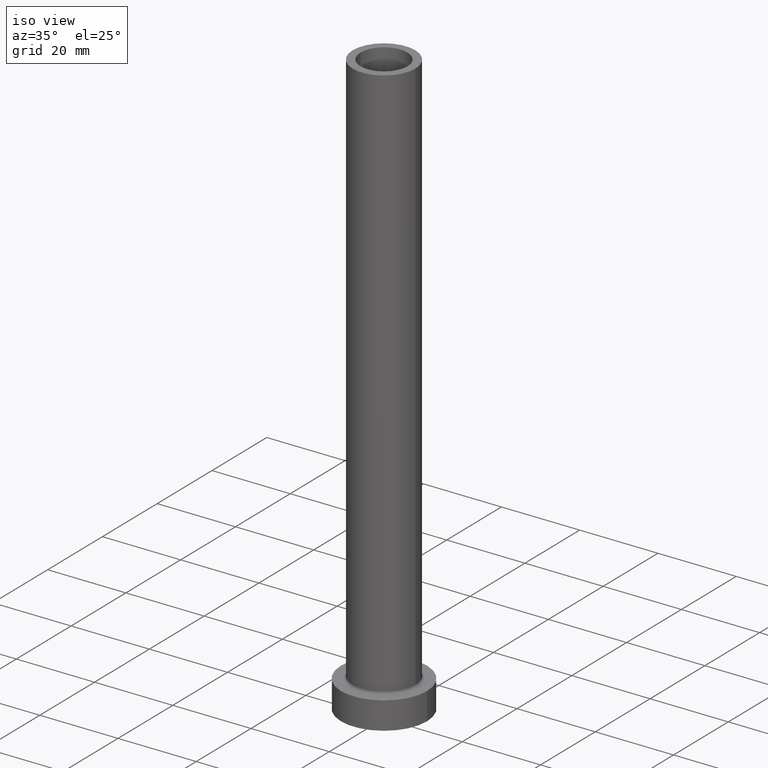
[diagram: clean part render]
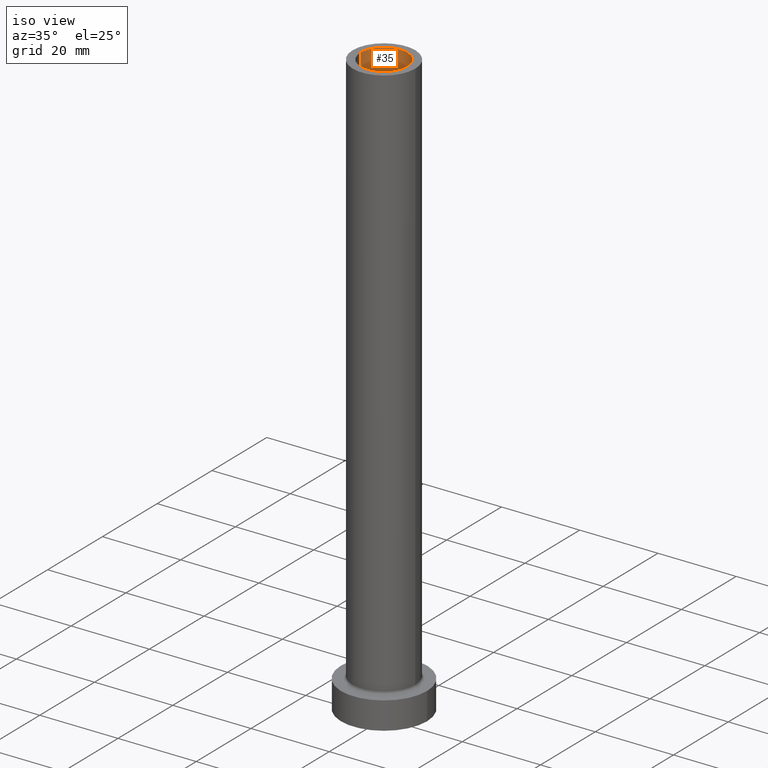
[diagram: same view with one face highlighted and labeled with its STEP entity id]
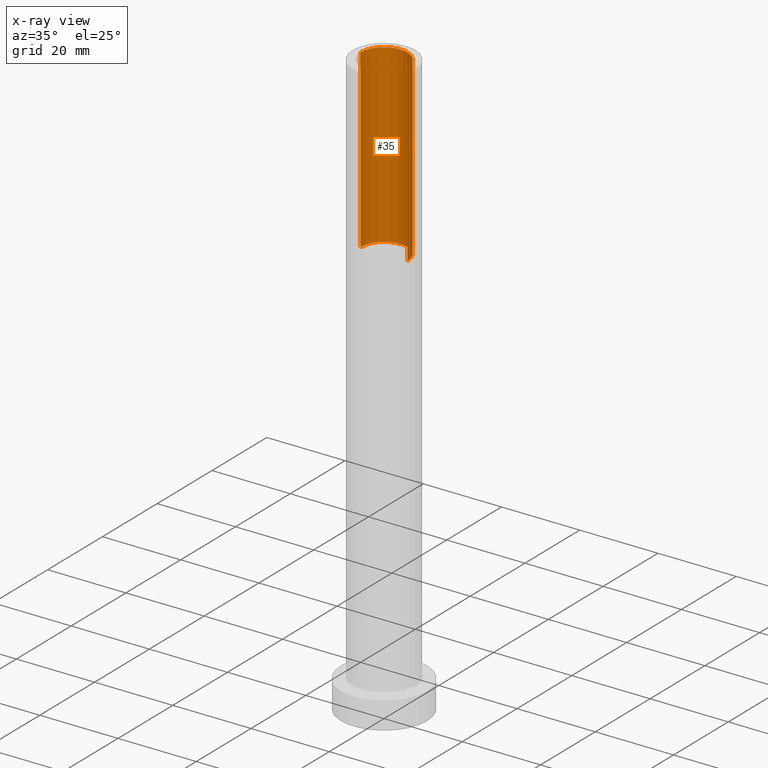
[diagram: x-ray of the same camera — body ghosted, the highlighted face saturated]
A machine part, iso view. The second image highlights one B-rep face of the part: STEP entity #35.
The next image is the same camera in x-ray: the body ghosted, the highlighted face saturated — about 0% of this face is hidden behind the body in this view.
In plain terms, the highlighted cylindrical surface (edge-blend (fillet) strip) has radius 6 mm, axis along (0, 0, -1).
Its self-contained STEP definition (entity closure, byte-faithful):
#2 = EDGE_CURVE ( 'NONE', #399, #138, #156, .T. ) ;
#11 = DIRECTION ( 'NONE',  ( 0.000000000000000000, 0.000000000000000000, 1.000000000000000000 ) ) ;
#12 = CARTESIAN_POINT ( 'NONE',  ( -6.000000000000000888, 0.000000000000000000, 105.0000000000000000 ) ) ;
#35 = ADVANCED_FACE ( 'NONE', ( #116 ), #259, .F. ) ;
#43 = LINE ( 'NONE', #291, #348 ) ;
#58 = CARTESIAN_POINT ( 'NONE',  ( 0.000000000000000000, 0.000000000000000000, 150.0000000000000000 ) ) ;
#67 = EDGE_CURVE ( 'NONE', #133, #314, #43, .T. ) ;
#69 = DIRECTION ( 'NONE',  ( 1.000000000000000000, 0.000000000000000000, 0.000000000000000000 ) ) ;
#99 = AXIS2_PLACEMENT_3D ( 'NONE', #327, #11, #69 ) ;
#105 = CARTESIAN_POINT ( 'NONE',  ( 0.000000000000000000, 0.000000000000000000, 150.0000000000000000 ) ) ;
#116 = FACE_OUTER_BOUND ( 'NONE', #393, .T. ) ;
#131 = EDGE_CURVE ( 'NONE', #133, #399, #184, .T. ) ;
#133 = VERTEX_POINT ( 'NONE', #323 ) ;
#138 = VERTEX_POINT ( 'NONE', #12 ) ;
#156 = LINE ( 'NONE', #403, #289 ) ;
#160 = CARTESIAN_POINT ( 'NONE',  ( -6.000000000000000888, 0.000000000000000000, 150.0000000000000000 ) ) ;
#170 = DIRECTION ( 'NONE',  ( 1.000000000000000000, 0.000000000000000000, 0.000000000000000000 ) ) ;
#174 = ORIENTED_EDGE ( 'NONE', *, *, #67, .F. ) ;
#181 = DIRECTION ( 'NONE',  ( 0.000000000000000000, 0.000000000000000000, -1.000000000000000000 ) ) ;
#184 = CIRCLE ( 'NONE', #365, 6.000000000000000888 ) ;
#207 = ORIENTED_EDGE ( 'NONE', *, *, #131, .T. ) ;
#248 = DIRECTION ( 'NONE',  ( 0.000000000000000000, 0.000000000000000000, -1.000000000000000000 ) ) ;
#259 = CYLINDRICAL_SURFACE ( 'NONE', #324, 6.000000000000000888 ) ;
#263 = DIRECTION ( 'NONE',  ( 0.000000000000000000, 0.000000000000000000, -1.000000000000000000 ) ) ;
#267 = EDGE_CURVE ( 'NONE', #314, #138, #304, .T. ) ;
#282 = ORIENTED_EDGE ( 'NONE', *, *, #2, .T. ) ;
#289 = VECTOR ( 'NONE', #181, 1000.000000000000000 ) ;
#291 = CARTESIAN_POINT ( 'NONE',  ( 6.000000000000000888, 7.347880794884119736E-16, 150.0000000000000000 ) ) ;
#304 = CIRCLE ( 'NONE', #99, 6.000000000000000888 ) ;
#314 = VERTEX_POINT ( 'NONE', #378 ) ;
#323 = CARTESIAN_POINT ( 'NONE',  ( 6.000000000000000888, 7.347880794884119736E-16, 150.0000000000000000 ) ) ;
#324 = AXIS2_PLACEMENT_3D ( 'NONE', #105, #248, #401 ) ;
#327 = CARTESIAN_POINT ( 'NONE',  ( 0.000000000000000000, 0.000000000000000000, 105.0000000000000000 ) ) ;
#348 = VECTOR ( 'NONE', #263, 1000.000000000000000 ) ;
#349 = DIRECTION ( 'NONE',  ( 0.000000000000000000, 0.000000000000000000, 1.000000000000000000 ) ) ;
#365 = AXIS2_PLACEMENT_3D ( 'NONE', #58, #349, #170 ) ;
#378 = CARTESIAN_POINT ( 'NONE',  ( 6.000000000000000888, 7.347880794884119736E-16, 105.0000000000000000 ) ) ;
#393 = EDGE_LOOP ( 'NONE', ( #174, #207, #282, #436 ) ) ;
#399 = VERTEX_POINT ( 'NONE', #160 ) ;
#401 = DIRECTION ( 'NONE',  ( -1.000000000000000000, 0.000000000000000000, 0.000000000000000000 ) ) ;
#403 = CARTESIAN_POINT ( 'NONE',  ( -6.000000000000000888, 0.000000000000000000, 150.0000000000000000 ) ) ;
#436 = ORIENTED_EDGE ( 'NONE', *, *, #267, .F. ) ;